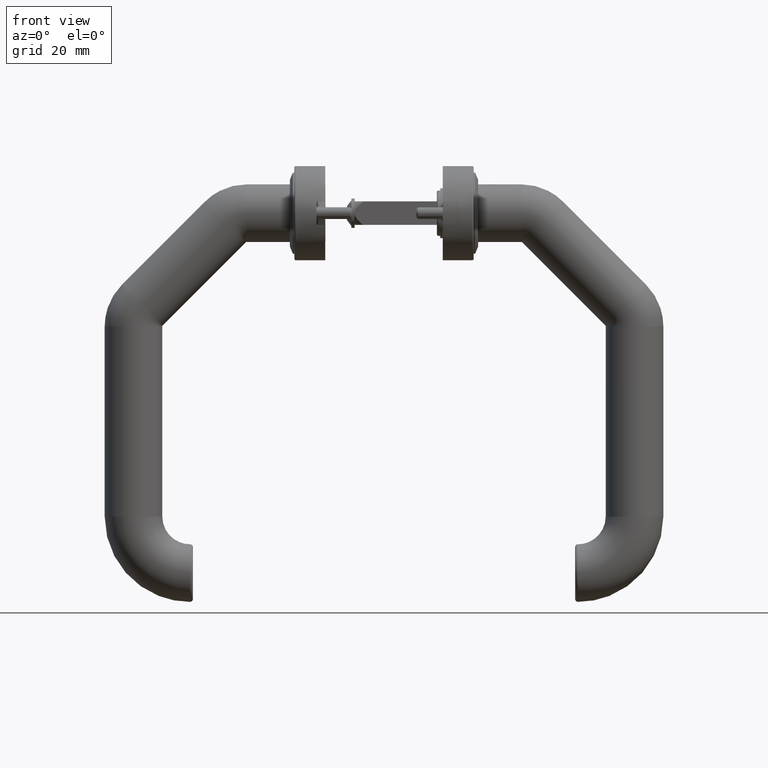
[diagram: clean part render]
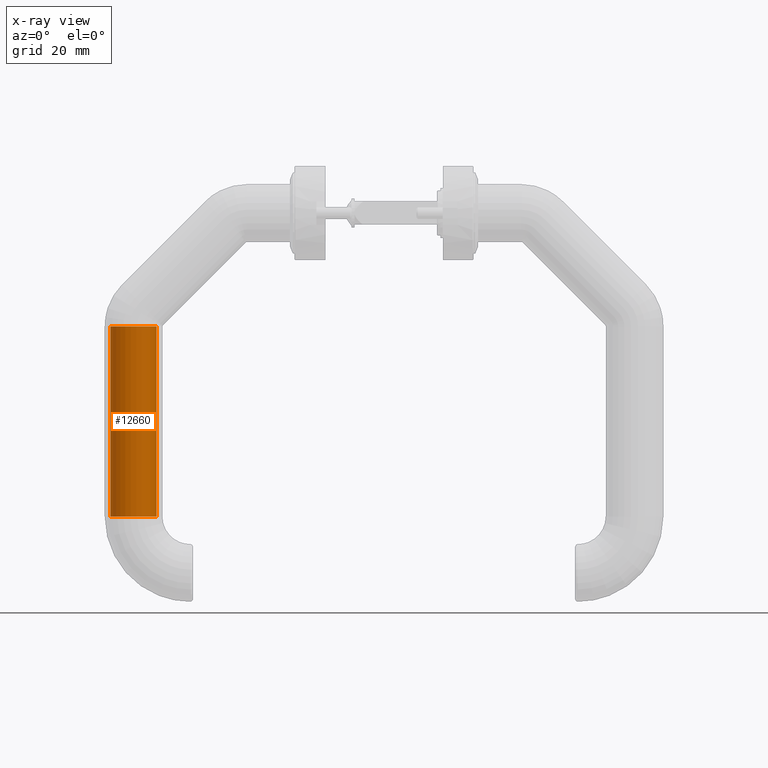
[diagram: x-ray — body ghosted, one internal face saturated and labeled with its STEP entity id]
A machine part, front view, then the same camera in x-ray: the body is ghosted and one INTERNAL B-rep face — a face not visible from any outside direction — is saturated and labeled: STEP entity #12660.
In plain terms, the highlighted cylindrical surface (bore or boss wall) has radius 7.85 mm, axis along (-0, -0, -1).
Its self-contained STEP definition (entity closure, byte-faithful):
#3146 = VERTEX_POINT ( 'NONE', #34197 ) ;
#6677 = CIRCLE ( 'NONE', #17517, 7.850000000000003197 ) ;
#6802 = CIRCLE ( 'NONE', #36803, 7.850000000000003197 ) ;
#7558 = DIRECTION ( 'NONE',  ( 0.000000000000000000, 0.000000000000000000, -1.000000000000000000 ) ) ;
#12660 = ADVANCED_FACE ( 'NONE', ( #29206, #28089 ), #17919, .F. ) ;
#13406 = DIRECTION ( 'NONE',  ( 0.000000000000000000, 0.000000000000000000, 1.000000000000000000 ) ) ;
#15421 = CARTESIAN_POINT ( 'NONE',  ( -112.9999999999999858, 0.000000000000000000, -9.799999999999993605 ) ) ;
#17191 = DIRECTION ( 'NONE',  ( -1.000000000000000000, 0.000000000000000000, 5.361056761363511764E-17 ) ) ;
#17517 = AXIS2_PLACEMENT_3D ( 'NONE', #23984, #17191, #13406 ) ;
#17861 = CARTESIAN_POINT ( 'NONE',  ( -48.28427124746188781, 0.000000000000000000, -9.799999999999995381 ) ) ;
#17919 = CYLINDRICAL_SURFACE ( 'NONE', #23155, 7.850000000000003197 ) ;
#19236 = CARTESIAN_POINT ( 'NONE',  ( -48.28427124746188781, 0.000000000000000000, -1.949999999999993516 ) ) ;
#22107 = DIRECTION ( 'NONE',  ( 0.000000000000000000, 0.000000000000000000, 1.000000000000000000 ) ) ;
#23155 = AXIS2_PLACEMENT_3D ( 'NONE', #17861, #43904, #22107 ) ;
#23984 = CARTESIAN_POINT ( 'NONE',  ( -48.28427124746188781, 0.000000000000000000, -9.799999999999995381 ) ) ;
#28089 = FACE_OUTER_BOUND ( 'NONE', #40516, .T. ) ;
#29206 = FACE_OUTER_BOUND ( 'NONE', #40047, .T. ) ;
#29808 = EDGE_CURVE ( 'NONE', #3146, #3146, #6802, .T. ) ;
#32757 = EDGE_CURVE ( 'NONE', #44922, #44922, #6677, .T. ) ;
#34197 = CARTESIAN_POINT ( 'NONE',  ( -112.9999999999999858, 0.000000000000000000, -17.64999999999999503 ) ) ;
#34751 = ORIENTED_EDGE ( 'NONE', *, *, #29808, .T. ) ;
#36803 = AXIS2_PLACEMENT_3D ( 'NONE', #15421, #43537, #7558 ) ;
#39083 = ORIENTED_EDGE ( 'NONE', *, *, #32757, .F. ) ;
#40047 = EDGE_LOOP ( 'NONE', ( #39083 ) ) ;
#40516 = EDGE_LOOP ( 'NONE', ( #34751 ) ) ;
#43537 = DIRECTION ( 'NONE',  ( -1.000000000000000000, 0.000000000000000000, 1.224646799147353207E-16 ) ) ;
#43904 = DIRECTION ( 'NONE',  ( -1.000000000000000000, 0.000000000000000000, 5.361056761363511764E-17 ) ) ;
#44922 = VERTEX_POINT ( 'NONE', #19236 ) ;